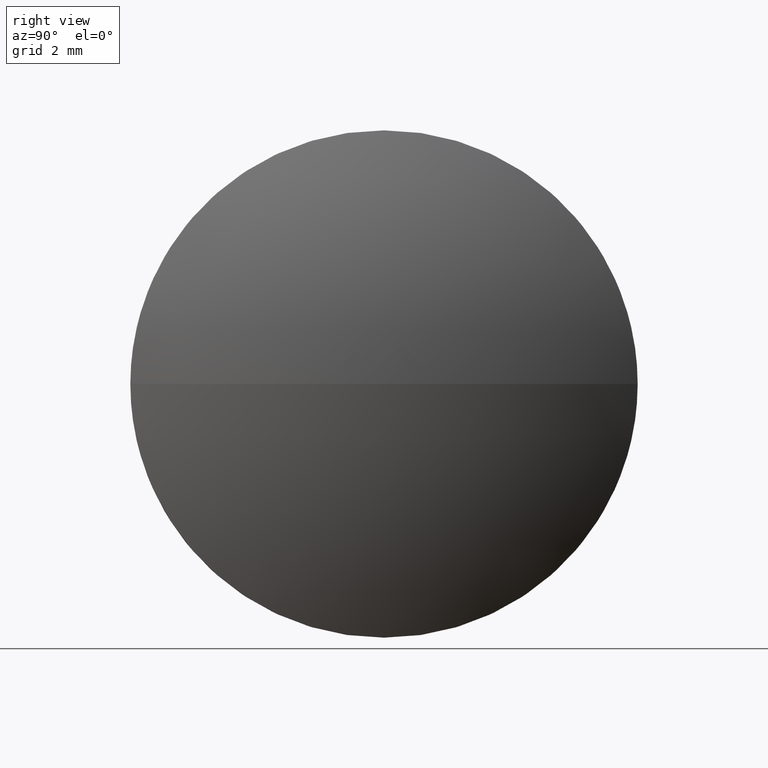
[diagram: clean part render]
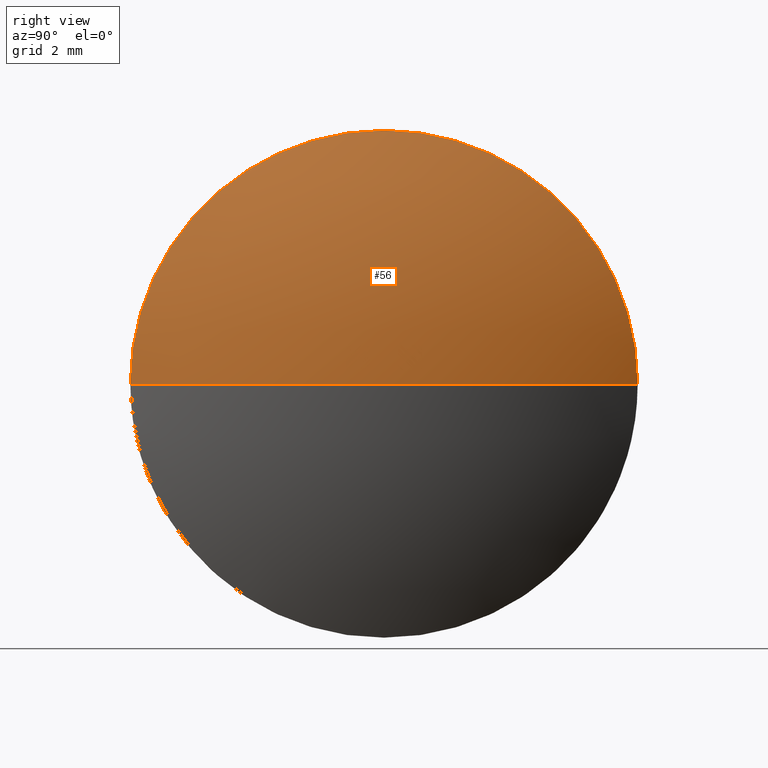
[diagram: same view with one face highlighted and labeled with its STEP entity id]
A machine part, right view. The second image highlights one B-rep face of the part: STEP entity #56.
In plain terms, the highlighted spherical surface has radius 13.7039 mm.
Its self-contained STEP definition (entity closure, byte-faithful):
#6 = ORIENTED_EDGE ( 'NONE', *, *, #134, .F. ) ;
#7 = DIRECTION ( 'NONE',  ( -0.0000000000000000000, 0.0000000000000000000, 1.000000000000000000 ) ) ;
#13 = VERTEX_POINT ( 'NONE', #164 ) ;
#18 = CARTESIAN_POINT ( 'NONE',  ( 369.2092935992750400, 41.04530442998002100, 0.0000000000000000000 ) ) ;
#20 = DIRECTION ( 'NONE',  ( -0.0000000000000000000, 0.0000000000000000000, -1.000000000000000000 ) ) ;
#28 = EDGE_CURVE ( 'NONE', #13, #36, #174, .T. ) ;
#31 = CARTESIAN_POINT ( 'NONE',  ( 369.2092935992750400, 34.69530442998001300, 0.0000000000000000000 ) ) ;
#36 = VERTEX_POINT ( 'NONE', #18 ) ;
#37 = AXIS2_PLACEMENT_3D ( 'NONE', #97, #7, #150 ) ;
#41 = VERTEX_POINT ( 'NONE', #73 ) ;
#44 = AXIS2_PLACEMENT_3D ( 'NONE', #108, #139, #129 ) ;
#45 = DIRECTION ( 'NONE',  ( 0.0000000000000000000, 0.0000000000000000000, 1.000000000000000000 ) ) ;
#50 = AXIS2_PLACEMENT_3D ( 'NONE', #177, #181, #45 ) ;
#51 = SPHERICAL_SURFACE ( 'NONE', #54, 13.70387820512830000 ) ;
#54 = AXIS2_PLACEMENT_3D ( 'NONE', #79, #20, #95 ) ;
#56 = ADVANCED_FACE ( 'NONE', ( #175 ), #51, .T. ) ;
#62 = DIRECTION ( 'NONE',  ( -1.000000000000000000, -0.0000000000000000000, -0.0000000000000000000 ) ) ;
#73 = CARTESIAN_POINT ( 'NONE',  ( 369.2092935992750400, 34.69530442998001300, 6.350000000000001400 ) ) ;
#76 = EDGE_CURVE ( 'NONE', #121, #41, #106, .T. ) ;
#79 = CARTESIAN_POINT ( 'NONE',  ( 357.0654153941467800, 34.69530442998000600, 0.0000000000000000000 ) ) ;
#83 = DIRECTION ( 'NONE',  ( 0.0000000000000000000, 0.0000000000000000000, 1.000000000000000000 ) ) ;
#89 = ORIENTED_EDGE ( 'NONE', *, *, #28, .T. ) ;
#91 = EDGE_CURVE ( 'NONE', #13, #121, #94, .T. ) ;
#94 = CIRCLE ( 'NONE', #44, 13.70387820512830000 ) ;
#95 = DIRECTION ( 'NONE',  ( 0.0000000000000000000, 1.000000000000000000, 0.0000000000000000000 ) ) ;
#97 = CARTESIAN_POINT ( 'NONE',  ( 357.0654153941467800, 34.69530442998000600, 0.0000000000000000000 ) ) ;
#98 = CIRCLE ( 'NONE', #110, 6.350000000000001400 ) ;
#106 = CIRCLE ( 'NONE', #50, 6.350000000000001400 ) ;
#108 = CARTESIAN_POINT ( 'NONE',  ( 357.0654153941467800, 34.69530442998000600, 0.0000000000000000000 ) ) ;
#110 = AXIS2_PLACEMENT_3D ( 'NONE', #31, #62, #83 ) ;
#121 = VERTEX_POINT ( 'NONE', #157 ) ;
#129 = DIRECTION ( 'NONE',  ( 0.0000000000000000000, 1.000000000000000000, 1.224646799147353200E-016 ) ) ;
#134 = EDGE_CURVE ( 'NONE', #41, #36, #98, .T. ) ;
#139 = DIRECTION ( 'NONE',  ( 0.0000000000000000000, 1.224646799147353200E-016, -1.000000000000000000 ) ) ;
#146 = ORIENTED_EDGE ( 'NONE', *, *, #91, .F. ) ;
#150 = DIRECTION ( 'NONE',  ( 1.000000000000000000, 0.0000000000000000000, 0.0000000000000000000 ) ) ;
#157 = CARTESIAN_POINT ( 'NONE',  ( 369.2092935992750400, 28.34530442997999700, -7.776507174585700100E-016 ) ) ;
#162 = EDGE_LOOP ( 'NONE', ( #146, #89, #6, #163 ) ) ;
#163 = ORIENTED_EDGE ( 'NONE', *, *, #76, .F. ) ;
#164 = CARTESIAN_POINT ( 'NONE',  ( 370.7692935992751000, 34.69530442998000600, 0.0000000000000000000 ) ) ;
#174 = CIRCLE ( 'NONE', #37, 13.70387820512830500 ) ;
#175 = FACE_OUTER_BOUND ( 'NONE', #162, .T. ) ;
#177 = CARTESIAN_POINT ( 'NONE',  ( 369.2092935992750400, 34.69530442998001300, 0.0000000000000000000 ) ) ;
#181 = DIRECTION ( 'NONE',  ( -1.000000000000000000, -0.0000000000000000000, -0.0000000000000000000 ) ) ;